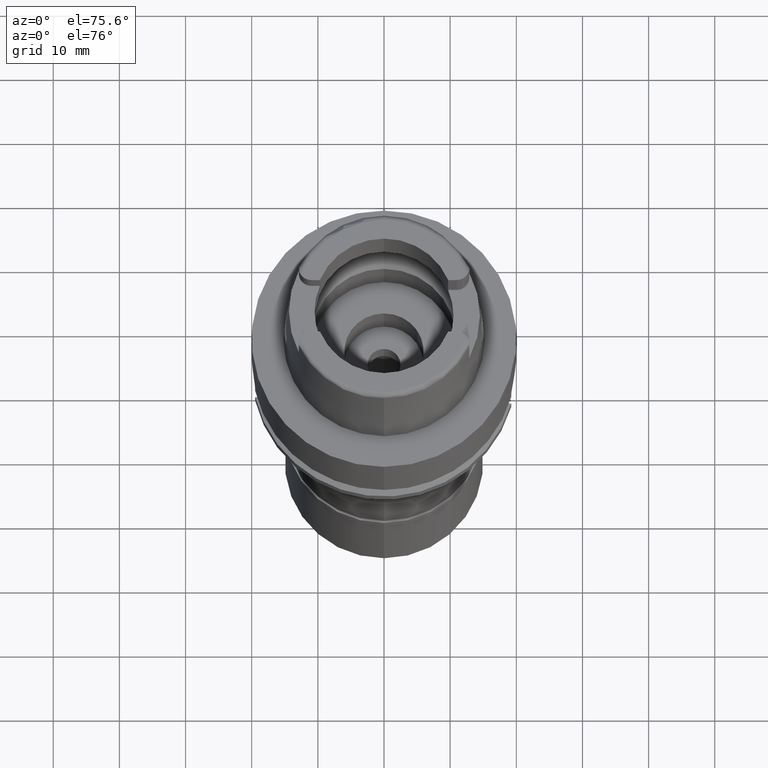
[diagram: clean part render]
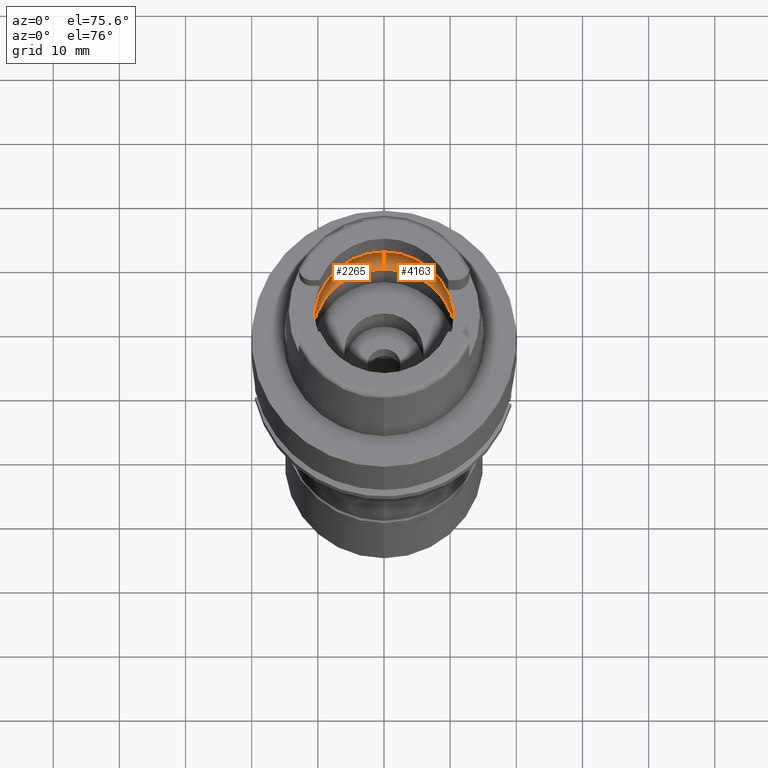
[diagram: same view with one multi-face feature highlighted, each face labeled with its STEP entity id]
A machine part, auxiliary view. The highlighted faces form ONE feature: a constant-radius fillet chain: 2 tangent blend faces with common blend radius 5 mm. The faces share edges in the B-rep.
Their STEP definitions:
[1] entity #2265 (Torus):
#83 = CARTESIAN_POINT ( 'NONE',  ( -12.74455357708000136, -0.1164899004163000018, 3.700000000000000178 ) ) ;
#166 = DIRECTION ( 'NONE',  ( 0.0000000000000000000, 1.000000000000000000, 0.0000000000000000000 ) ) ;
#182 = CIRCLE ( 'NONE', #4340, 12.75000000000000000 ) ;
#210 = ORIENTED_EDGE ( 'NONE', *, *, #1628, .F. ) ;
#270 = EDGE_CURVE ( 'NONE', #406, #671, #1651, .T. ) ;
#406 = VERTEX_POINT ( 'NONE', #5037 ) ;
#497 = CARTESIAN_POINT ( 'NONE',  ( -12.73125750676000045, 0.6899583193243999935, 3.796706423028999744 ) ) ;
#671 = VERTEX_POINT ( 'NONE', #1147 ) ;
#674 = DIRECTION ( 'NONE',  ( 0.0000000000000000000, 0.6299999999999791322, -0.7765951326141738997 ) ) ;
#731 = CARTESIAN_POINT ( 'NONE',  ( -12.70998420979999999, -1.009356917307999923, 3.933312163512999504 ) ) ;
#898 = DIRECTION ( 'NONE',  ( -1.000000000000000000, 0.0000000000000000000, 0.0000000000000000000 ) ) ;
#915 = CARTESIAN_POINT ( 'NONE',  ( 0.0000000000000000000, 12.75000000000000000, 3.933312163512999504 ) ) ;
#1030 = EDGE_CURVE ( 'NONE', #2770, #406, #4489, .T. ) ;
#1031 = CARTESIAN_POINT ( 'NONE',  ( -12.71822604554000158, -0.9055743997279999125, 3.882625455939000325 ) ) ;
#1123 = ORIENTED_EDGE ( 'NONE', *, *, #2929, .F. ) ;
#1146 = VERTEX_POINT ( 'NONE', #4039 ) ;
#1147 = CARTESIAN_POINT ( 'NONE',  ( -12.70998420979999999, 1.009356917307999923, 3.933312163512999504 ) ) ;
#1216 = AXIS2_PLACEMENT_3D ( 'NONE', #3887, #1799, #166 ) ;
#1257 = CARTESIAN_POINT ( 'NONE',  ( -12.74455357708000136, 0.0000000000000000000, 3.700000000000000178 ) ) ;
#1422 = DIRECTION ( 'NONE',  ( 0.0000000000000000000, 0.0000000000000000000, 1.000000000000000000 ) ) ;
#1427 = EDGE_CURVE ( 'NONE', #671, #4970, #2246, .T. ) ;
#1542 = CARTESIAN_POINT ( 'NONE',  ( 0.0000000000000000000, 10.90000000000000036, 0.05033650044218999919 ) ) ;
#1594 = DIRECTION ( 'NONE',  ( 0.0000000000000000000, -1.000000000000000000, 0.0000000000000000000 ) ) ;
#1628 = EDGE_CURVE ( 'NONE', #3789, #1146, #3296, .T. ) ;
#1651 = B_SPLINE_CURVE_WITH_KNOTS ( 'NONE', 3,
 ( #1257, #4565, #2448, #497, #2949, #2506 ),
 .UNSPECIFIED., .F., .F.,
 ( 4, 1, 1, 4 ),
 ( 0.0000000000000000000, 0.3333333333333000081, 0.6666666666667000474, 1.000000000000000000 ),
 .UNSPECIFIED. ) ;
#1657 = ORIENTED_EDGE ( 'NONE', *, *, #270, .F. ) ;
#1659 = CARTESIAN_POINT ( 'NONE',  ( 0.0000000000000000000, -7.750000000000000000, 3.933312163512999504 ) ) ;
#1748 = TOROIDAL_SURFACE ( 'NONE', #1216, 7.750000000000000000, 5.000000000000000000 ) ;
#1751 = CARTESIAN_POINT ( 'NONE',  ( -12.74455357708000136, 0.0000000000000000000, 3.700000000000000178 ) ) ;
#1799 = DIRECTION ( 'NONE',  ( 0.0000000000000000000, 0.0000000000000000000, 1.000000000000000000 ) ) ;
#1849 = CARTESIAN_POINT ( 'NONE',  ( -12.70998420979999999, -1.009356917307999923, 3.933312163512999504 ) ) ;
#1962 = EDGE_CURVE ( 'NONE', #4212, #3789, #4409, .T. ) ;
#2148 = CARTESIAN_POINT ( 'NONE',  ( -12.74221291166999848, -0.3492185594747999611, 3.717717229424999825 ) ) ;
#2175 = AXIS2_PLACEMENT_3D ( 'NONE', #4447, #4390, #674 ) ;
#2246 = CIRCLE ( 'NONE', #5286, 12.75000000000000533 ) ;
#2265 = ADVANCED_FACE ( 'NONE', ( #4272 ), #1748, .F. ) ;
#2329 = DIRECTION ( 'NONE',  ( 0.0000000000000000000, 0.0000000000000000000, -1.000000000000000000 ) ) ;
#2448 = CARTESIAN_POINT ( 'NONE',  ( -12.74221288987999934, 0.3492192028084000199, 3.717717384548000048 ) ) ;
#2506 = CARTESIAN_POINT ( 'NONE',  ( -12.70998420979999999, 1.009356917307999923, 3.933312163512999504 ) ) ;
#2512 = AXIS2_PLACEMENT_3D ( 'NONE', #5148, #1422, #4680 ) ;
#2574 = EDGE_LOOP ( 'NONE', ( #1123, #210, #4114, #5114, #2697, #1657, #4070 ) ) ;
#2697 = ORIENTED_EDGE ( 'NONE', *, *, #1427, .F. ) ;
#2770 = VERTEX_POINT ( 'NONE', #731 ) ;
#2929 = EDGE_CURVE ( 'NONE', #1146, #2770, #182, .T. ) ;
#2949 = CARTESIAN_POINT ( 'NONE',  ( -12.71822608136000099, 0.9055739486030000007, 3.882625235612000125 ) ) ;
#3102 = CARTESIAN_POINT ( 'NONE',  ( -12.73125746365999866, -0.6899594359198999438, 3.796706725423999895 ) ) ;
#3256 = DIRECTION ( 'NONE',  ( 0.0000000000000000000, -0.6299999999999791322, -0.7765951326141738997 ) ) ;
#3296 = CIRCLE ( 'NONE', #4596, 5.000000000000000888 ) ;
#3645 = CIRCLE ( 'NONE', #2175, 5.000000000000000888 ) ;
#3789 = VERTEX_POINT ( 'NONE', #5171 ) ;
#3887 = CARTESIAN_POINT ( 'NONE',  ( 0.0000000000000000000, 0.0000000000000000000, 3.933312163512999504 ) ) ;
#3903 = DIRECTION ( 'NONE',  ( 0.0000000000000000000, 0.0000000000000000000, -1.000000000000000000 ) ) ;
#4039 = CARTESIAN_POINT ( 'NONE',  ( 0.0000000000000000000, -12.75000000000000000, 3.933312163512999504 ) ) ;
#4070 = ORIENTED_EDGE ( 'NONE', *, *, #1030, .F. ) ;
#4114 = ORIENTED_EDGE ( 'NONE', *, *, #1962, .F. ) ;
#4206 = CARTESIAN_POINT ( 'NONE',  ( 0.0000000000000000000, 0.0000000000000000000, 3.933312163512999504 ) ) ;
#4212 = VERTEX_POINT ( 'NONE', #1542 ) ;
#4251 = EDGE_CURVE ( 'NONE', #4212, #4970, #3645, .T. ) ;
#4272 = FACE_OUTER_BOUND ( 'NONE', #2574, .T. ) ;
#4340 = AXIS2_PLACEMENT_3D ( 'NONE', #4466, #2329, #1594 ) ;
#4390 = DIRECTION ( 'NONE',  ( 1.000000000000000000, 0.0000000000000000000, 0.0000000000000000000 ) ) ;
#4409 = CIRCLE ( 'NONE', #2512, 10.90000000000000036 ) ;
#4447 = CARTESIAN_POINT ( 'NONE',  ( 0.0000000000000000000, 7.750000000000000000, 3.933312163512999504 ) ) ;
#4466 = CARTESIAN_POINT ( 'NONE',  ( 0.0000000000000000000, 0.0000000000000000000, 3.933312163512999504 ) ) ;
#4489 = B_SPLINE_CURVE_WITH_KNOTS ( 'NONE', 3,
 ( #1849, #1031, #3102, #2148, #83, #1751 ),
 .UNSPECIFIED., .F., .F.,
 ( 4, 1, 1, 4 ),
 ( 0.0000000000000000000, 0.3333333333333000081, 0.6666666666667000474, 1.000000000000000000 ),
 .UNSPECIFIED. ) ;
#4565 = CARTESIAN_POINT ( 'NONE',  ( -12.74455357708000136, 0.1164901918596000091, 3.700000000000000178 ) ) ;
#4596 = AXIS2_PLACEMENT_3D ( 'NONE', #1659, #898, #3256 ) ;
#4680 = DIRECTION ( 'NONE',  ( 0.0000000000000000000, 1.000000000000000000, 0.0000000000000000000 ) ) ;
#4693 = DIRECTION ( 'NONE',  ( -0.9968615066513395462, 0.07916524841634305087, 0.0000000000000000000 ) ) ;
#4970 = VERTEX_POINT ( 'NONE', #915 ) ;
#5037 = CARTESIAN_POINT ( 'NONE',  ( -12.74455357708000136, 0.0000000000000000000, 3.700000000000000178 ) ) ;
#5114 = ORIENTED_EDGE ( 'NONE', *, *, #4251, .T. ) ;
#5148 = CARTESIAN_POINT ( 'NONE',  ( 0.0000000000000000000, 0.0000000000000000000, 0.05033650044218999919 ) ) ;
#5171 = CARTESIAN_POINT ( 'NONE',  ( 0.0000000000000000000, -10.90000000000000036, 0.05033650044218999919 ) ) ;
#5286 = AXIS2_PLACEMENT_3D ( 'NONE', #4206, #3903, #4693 ) ;
[2] entity #4163 (Torus):
#104 = CARTESIAN_POINT ( 'NONE',  ( 12.71822610189000002, 0.9055736900758000196, 3.882625109348999626 ) ) ;
#112 = EDGE_CURVE ( 'NONE', #4970, #4213, #764, .T. ) ;
#246 = CARTESIAN_POINT ( 'NONE',  ( 0.0000000000000000000, 0.0000000000000000000, 0.05033650044218999919 ) ) ;
#539 = CARTESIAN_POINT ( 'NONE',  ( 12.74221290141999852, 0.3492185334599000046, 3.717717296959999640 ) ) ;
#545 = ORIENTED_EDGE ( 'NONE', *, *, #1628, .T. ) ;
#605 = AXIS2_PLACEMENT_3D ( 'NONE', #246, #3893, #3919 ) ;
#657 = CARTESIAN_POINT ( 'NONE',  ( 12.74221290004999929, -0.3492192328273999724, 3.717717317537999833 ) ) ;
#674 = DIRECTION ( 'NONE',  ( 0.0000000000000000000, 0.6299999999999791322, -0.7765951326141738997 ) ) ;
#714 = DIRECTION ( 'NONE',  ( 0.0000000000000000000, 0.0000000000000000000, -1.000000000000000000 ) ) ;
#735 = ORIENTED_EDGE ( 'NONE', *, *, #3726, .F. ) ;
#764 = CIRCLE ( 'NONE', #2068, 12.75000000000000000 ) ;
#898 = DIRECTION ( 'NONE',  ( -1.000000000000000000, 0.0000000000000000000, 0.0000000000000000000 ) ) ;
#913 = EDGE_CURVE ( 'NONE', #2824, #1146, #2676, .T. ) ;
#915 = CARTESIAN_POINT ( 'NONE',  ( 0.0000000000000000000, 12.75000000000000000, 3.933312163512999504 ) ) ;
#1071 = CARTESIAN_POINT ( 'NONE',  ( 12.73125743228000140, -0.6899600802084000506, 3.796706942599000101 ) ) ;
#1091 = DIRECTION ( 'NONE',  ( 0.0000000000000000000, 1.000000000000000000, 0.0000000000000000000 ) ) ;
#1146 = VERTEX_POINT ( 'NONE', #4039 ) ;
#1153 = CARTESIAN_POINT ( 'NONE',  ( 12.74455357708000136, -0.1164901899716000028, 3.700000000000000178 ) ) ;
#1192 = CARTESIAN_POINT ( 'NONE',  ( 12.74455357708000136, 0.0000000000000000000, 3.700000000000000178 ) ) ;
#1273 = ORIENTED_EDGE ( 'NONE', *, *, #4251, .F. ) ;
#1409 = CARTESIAN_POINT ( 'NONE',  ( 12.73125753795000037, 0.6899576788429000462, 3.796706207139000089 ) ) ;
#1431 = CARTESIAN_POINT ( 'NONE',  ( 12.74455357708000136, 0.0000000000000000000, 3.700000000000000178 ) ) ;
#1530 = ORIENTED_EDGE ( 'NONE', *, *, #913, .F. ) ;
#1542 = CARTESIAN_POINT ( 'NONE',  ( 0.0000000000000000000, 10.90000000000000036, 0.05033650044218999919 ) ) ;
#1578 = B_SPLINE_CURVE_WITH_KNOTS ( 'NONE', 3,
 ( #4791, #1153, #657, #1071, #2316, #2786 ),
 .UNSPECIFIED., .F., .F.,
 ( 4, 1, 1, 4 ),
 ( 0.0000000000000000000, 0.3333333333333000081, 0.6666666666667000474, 1.000000000000000000 ),
 .UNSPECIFIED. ) ;
#1628 = EDGE_CURVE ( 'NONE', #3789, #1146, #3296, .T. ) ;
#1659 = CARTESIAN_POINT ( 'NONE',  ( 0.0000000000000000000, -7.750000000000000000, 3.933312163512999504 ) ) ;
#1824 = ORIENTED_EDGE ( 'NONE', *, *, #4652, .F. ) ;
#1896 = AXIS2_PLACEMENT_3D ( 'NONE', #5060, #4669, #4722 ) ;
#1951 = ORIENTED_EDGE ( 'NONE', *, *, #5193, .F. ) ;
#2020 = EDGE_LOOP ( 'NONE', ( #1824, #5184, #1273, #735, #545, #1530, #1951 ) ) ;
#2068 = AXIS2_PLACEMENT_3D ( 'NONE', #5278, #714, #1091 ) ;
#2175 = AXIS2_PLACEMENT_3D ( 'NONE', #4447, #4390, #674 ) ;
#2253 = FACE_OUTER_BOUND ( 'NONE', #2020, .T. ) ;
#2316 = CARTESIAN_POINT ( 'NONE',  ( 12.71822602487999987, -0.9055746597918999941, 3.882625582952000443 ) ) ;
#2332 = CARTESIAN_POINT ( 'NONE',  ( 12.70998420979999999, 1.009356917307999923, 3.933312163512999504 ) ) ;
#2651 = CARTESIAN_POINT ( 'NONE',  ( 12.74455357708000136, 0.1164899040262999952, 3.700000000000000178 ) ) ;
#2676 = CIRCLE ( 'NONE', #1896, 12.75000000000000533 ) ;
#2689 = CARTESIAN_POINT ( 'NONE',  ( 0.0000000000000000000, 0.0000000000000000000, 3.933312163512999504 ) ) ;
#2736 = B_SPLINE_CURVE_WITH_KNOTS ( 'NONE', 3,
 ( #3500, #104, #1409, #539, #2651, #1431 ),
 .UNSPECIFIED., .F., .F.,
 ( 4, 1, 1, 4 ),
 ( 0.0000000000000000000, 0.3333333333333000081, 0.6666666666667000474, 1.000000000000000000 ),
 .UNSPECIFIED. ) ;
#2778 = CIRCLE ( 'NONE', #605, 10.90000000000000036 ) ;
#2786 = CARTESIAN_POINT ( 'NONE',  ( 12.70998420979999999, -1.009356917307999923, 3.933312163512999504 ) ) ;
#2824 = VERTEX_POINT ( 'NONE', #4879 ) ;
#3256 = DIRECTION ( 'NONE',  ( 0.0000000000000000000, -0.6299999999999791322, -0.7765951326141738997 ) ) ;
#3296 = CIRCLE ( 'NONE', #4596, 5.000000000000000888 ) ;
#3500 = CARTESIAN_POINT ( 'NONE',  ( 12.70998420979999999, 1.009356917307999923, 3.933312163512999504 ) ) ;
#3551 = TOROIDAL_SURFACE ( 'NONE', #4250, 7.750000000000000000, 5.000000000000000000 ) ;
#3645 = CIRCLE ( 'NONE', #2175, 5.000000000000000888 ) ;
#3726 = EDGE_CURVE ( 'NONE', #3789, #4212, #2778, .T. ) ;
#3789 = VERTEX_POINT ( 'NONE', #5171 ) ;
#3893 = DIRECTION ( 'NONE',  ( 0.0000000000000000000, 0.0000000000000000000, 1.000000000000000000 ) ) ;
#3919 = DIRECTION ( 'NONE',  ( 0.0000000000000000000, -1.000000000000000000, 0.0000000000000000000 ) ) ;
#4039 = CARTESIAN_POINT ( 'NONE',  ( 0.0000000000000000000, -12.75000000000000000, 3.933312163512999504 ) ) ;
#4163 = ADVANCED_FACE ( 'NONE', ( #2253 ), #3551, .F. ) ;
#4212 = VERTEX_POINT ( 'NONE', #1542 ) ;
#4213 = VERTEX_POINT ( 'NONE', #2332 ) ;
#4250 = AXIS2_PLACEMENT_3D ( 'NONE', #2689, #4671, #5166 ) ;
#4251 = EDGE_CURVE ( 'NONE', #4212, #4970, #3645, .T. ) ;
#4259 = VERTEX_POINT ( 'NONE', #1192 ) ;
#4390 = DIRECTION ( 'NONE',  ( 1.000000000000000000, 0.0000000000000000000, 0.0000000000000000000 ) ) ;
#4447 = CARTESIAN_POINT ( 'NONE',  ( 0.0000000000000000000, 7.750000000000000000, 3.933312163512999504 ) ) ;
#4596 = AXIS2_PLACEMENT_3D ( 'NONE', #1659, #898, #3256 ) ;
#4652 = EDGE_CURVE ( 'NONE', #4213, #4259, #2736, .T. ) ;
#4669 = DIRECTION ( 'NONE',  ( 0.0000000000000000000, 0.0000000000000000000, -1.000000000000000000 ) ) ;
#4671 = DIRECTION ( 'NONE',  ( 0.0000000000000000000, 0.0000000000000000000, 1.000000000000000000 ) ) ;
#4722 = DIRECTION ( 'NONE',  ( 0.9968615066513395462, -0.07916524841634305087, 0.0000000000000000000 ) ) ;
#4791 = CARTESIAN_POINT ( 'NONE',  ( 12.74455357708000136, 0.0000000000000000000, 3.700000000000000178 ) ) ;
#4879 = CARTESIAN_POINT ( 'NONE',  ( 12.70998420979999999, -1.009356917307999923, 3.933312163512999504 ) ) ;
#4970 = VERTEX_POINT ( 'NONE', #915 ) ;
#5060 = CARTESIAN_POINT ( 'NONE',  ( 0.0000000000000000000, 0.0000000000000000000, 3.933312163512999504 ) ) ;
#5166 = DIRECTION ( 'NONE',  ( 0.0000000000000000000, 1.000000000000000000, 0.0000000000000000000 ) ) ;
#5171 = CARTESIAN_POINT ( 'NONE',  ( 0.0000000000000000000, -10.90000000000000036, 0.05033650044218999919 ) ) ;
#5184 = ORIENTED_EDGE ( 'NONE', *, *, #112, .F. ) ;
#5193 = EDGE_CURVE ( 'NONE', #4259, #2824, #1578, .T. ) ;
#5278 = CARTESIAN_POINT ( 'NONE',  ( 0.0000000000000000000, 0.0000000000000000000, 3.933312163512999504 ) ) ;